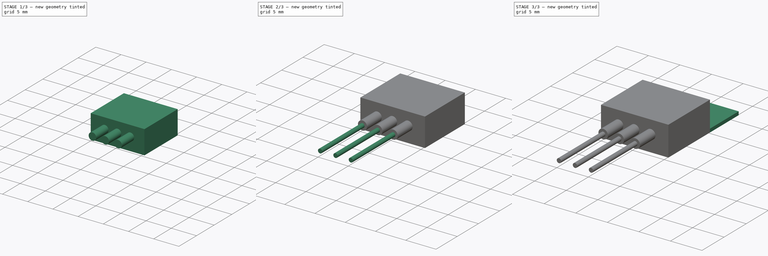
[diagram: build sequence overview — one tinted view per stage of 3, left to right]
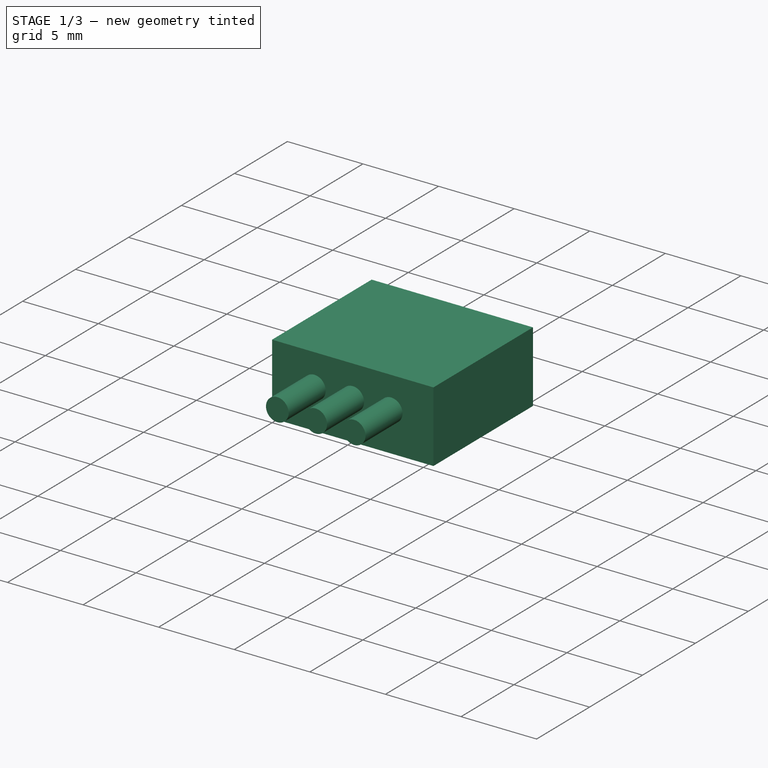
[diagram: stage 1 of 3 — iso view after this stage's code; geometry added in this stage tinted green]
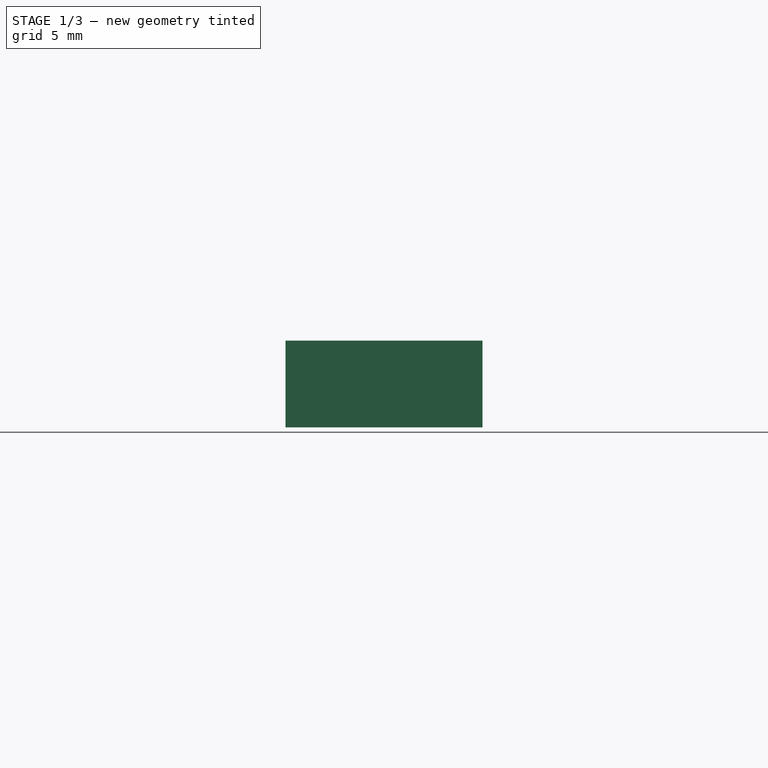
[diagram: stage 1 of 3 — front view after this stage's code; geometry added in this stage tinted green]
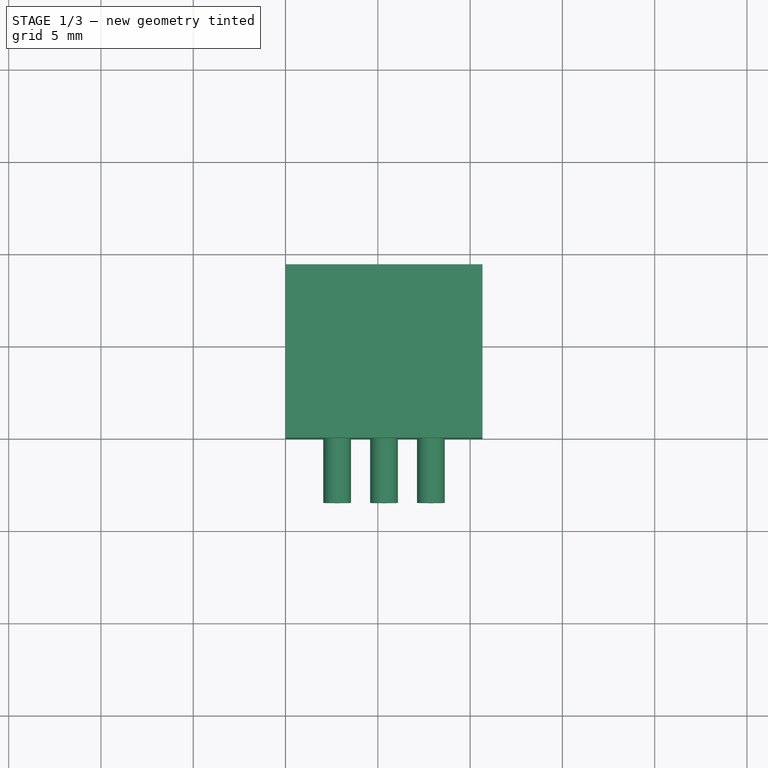
[diagram: stage 1 of 3 — top view after this stage's code; geometry added in this stage tinted green]
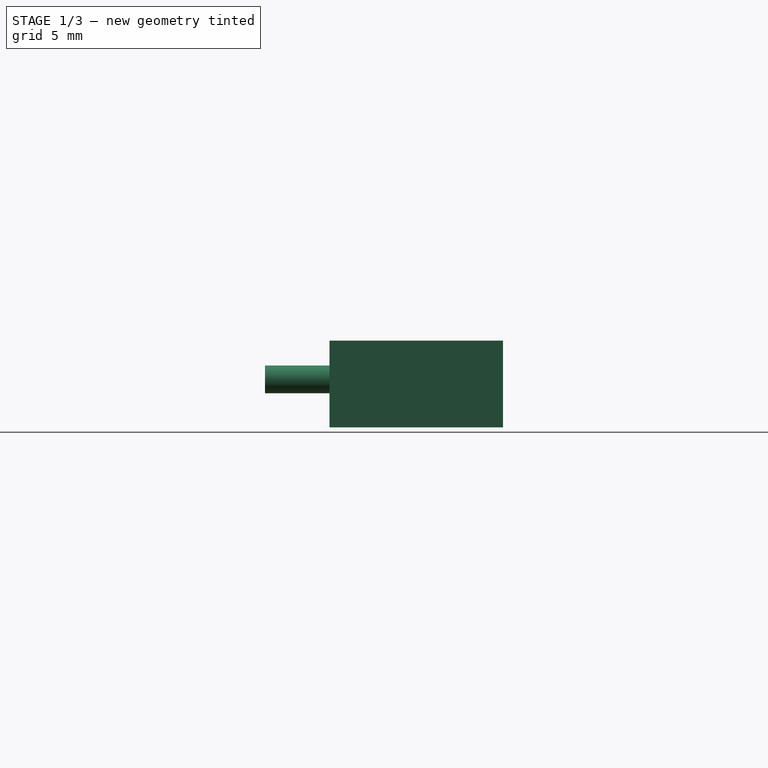
[diagram: stage 1 of 3 — right view after this stage's code; geometry added in this stage tinted green]
FCSTD DOCUMENT  (FreeCAD 0.15R4671 (Git))
Label: LM7805c
License: All rights reserved
LicenseURL: http://en.wikipedia.org/wiki/All_rights_reserved
objects: Sketcher::SketchObject×5, PartDesign::Pad×4, PartDesign::Pocket×1
note: 15 computed .brp shape members not serialized (recipe doc carries the construction recipe); baked Part::Feature solids carry a one-line shape summary decoded from their .brp

FEATURE [Sketcher::SketchObject] Sketch
  sketch-geometry (4):
    g0: LineSegment StartX=0 StartY=0 StartZ=0 EndX=10.67 EndY=0 EndZ=0
    g1: LineSegment StartX=10.67 StartY=0 StartZ=0 EndX=10.67 EndY=9.4 EndZ=0
    g2: LineSegment StartX=10.67 StartY=9.4 StartZ=0 EndX=0 EndY=9.4 EndZ=0
    g3: LineSegment StartX=0 StartY=9.4 StartZ=0 EndX=0 EndY=0 EndZ=0
  constraints (11):
    c: Coincident(g0,g1)
    c: Coincident(g1,g2)
    c: Coincident(g2,g3)
    c: Coincident(g3,g0)
    c: Horizontal(g0)
    c: Horizontal(g2)
    c: Vertical(g1)
    c: Vertical(g3)
    c: Coincident(g0,g-1)
    c: DistanceY(g-1,g2) = 9.4
    c: DistanceX(g-1,g0) = 10.67
FEATURE [PartDesign::Pad] Pad
  Length = 4.7
  Length2 = 100
  Sketch = -> Sketch
  Type = 0
FEATURE [Sketcher::SketchObject] Sketch001
  ExternalGeometry = -> [Pad]
  Placement = pos=(0,0,0) rot=(1,0,0;1.5708rad)
  Support = -> Pad [Face1]
  sketch-geometry (7):
    g0: Circle CenterX=2.795 CenterY=2.6 CenterZ=0 NormalX=0 NormalY=0 NormalZ=1 Radius=0.75
    g1: Circle CenterX=5.335 CenterY=2.6 CenterZ=0 NormalX=0 NormalY=0 NormalZ=1 Radius=0.75
    g2: Circle CenterX=7.875 CenterY=2.6 CenterZ=0 NormalX=0 NormalY=0 NormalZ=1 Radius=0.75
    g3: LineSegment [constr] StartX=2.795 StartY=2.6 StartZ=0 EndX=5.335 EndY=2.6 EndZ=0
    g4: LineSegment [constr] StartX=5.335 StartY=2.6 StartZ=0 EndX=7.875 EndY=2.6 EndZ=0
    g5: LineSegment [constr] StartX=2.795 StartY=2.6 StartZ=0 EndX=0 EndY=2.6 EndZ=0
    g6: LineSegment [constr] StartX=7.875 StartY=2.6 StartZ=0 EndX=10.67 EndY=2.6 EndZ=0
  constraints (19):
    c: Equal(g1,g0)
    c: Equal(g0,g2)
    c: DistanceX(g0,g1) = 2.54
    c: Coincident(g3,g0)
    c: Coincident(g3,g1)
    c: Coincident(g4,g1)
    c: Coincident(g4,g2)
    c: Horizontal(g3)
    c: Horizontal(g4)
    c: Equal(g3,g4)
    c: Coincident(g5,g0)
    c: PointOnObject(g5,g-4)
    c: Horizontal(g5)
    c: Coincident(g6,g2)
    c: PointOnObject(g6,g-3)
    c: Horizontal(g6)
    c: Equal(g5,g6)
    c: DistanceY(g6,g-3) = -2.6
    c: Radius(g0) = 0.75
FEATURE [PartDesign::Pad] Pad001
  Length = 3.5
  Length2 = 100
  Sketch = -> Sketch001
  Type = 0
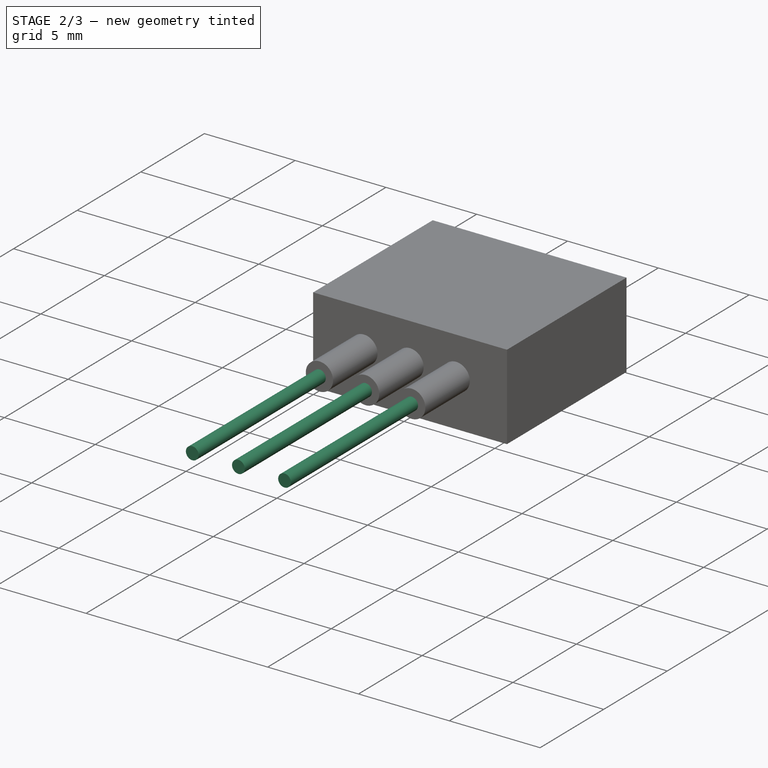
[diagram: stage 2 of 3 — iso view after this stage's code; geometry added in this stage tinted green]
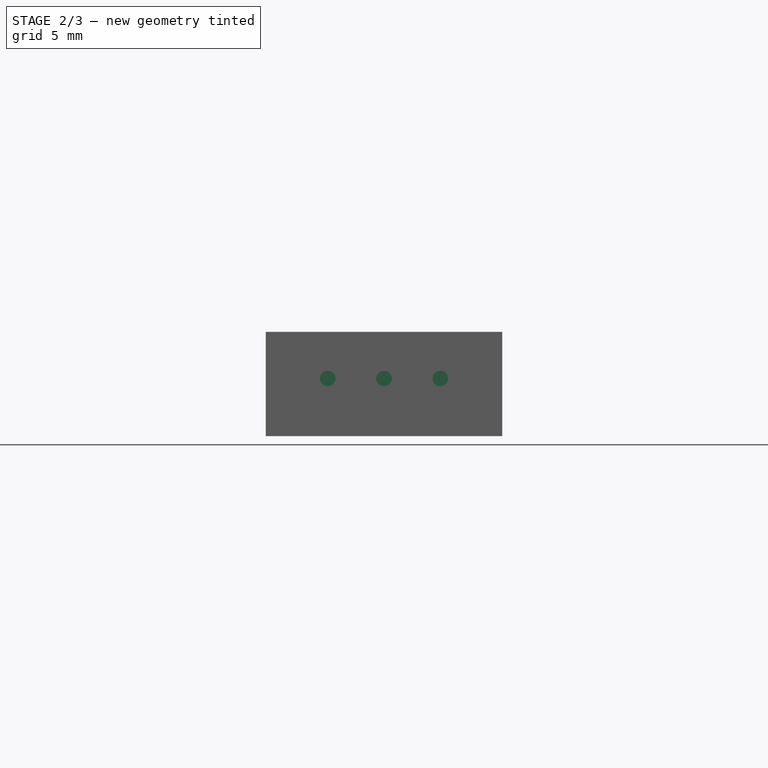
[diagram: stage 2 of 3 — front view after this stage's code; geometry added in this stage tinted green]
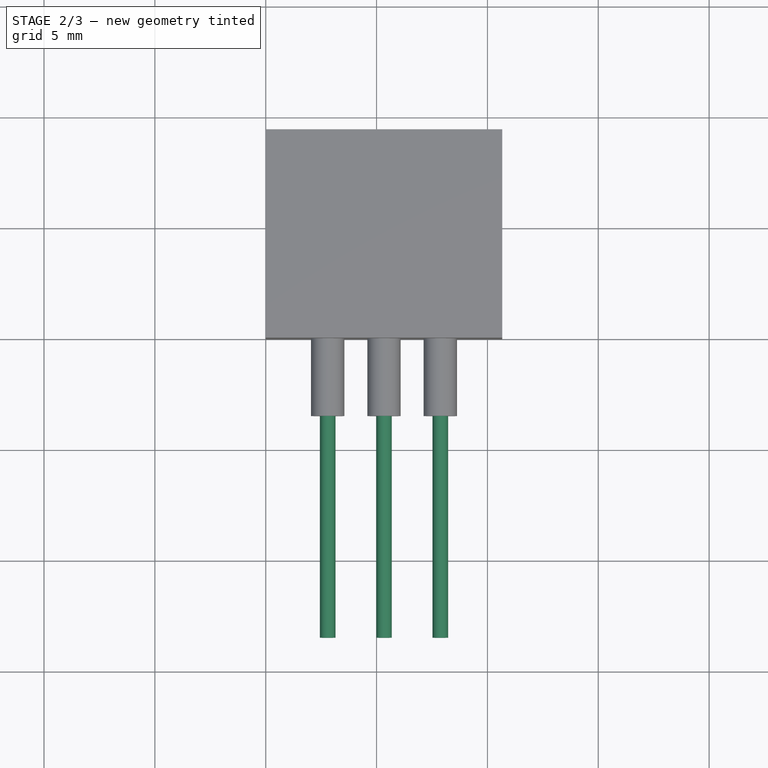
[diagram: stage 2 of 3 — top view after this stage's code; geometry added in this stage tinted green]
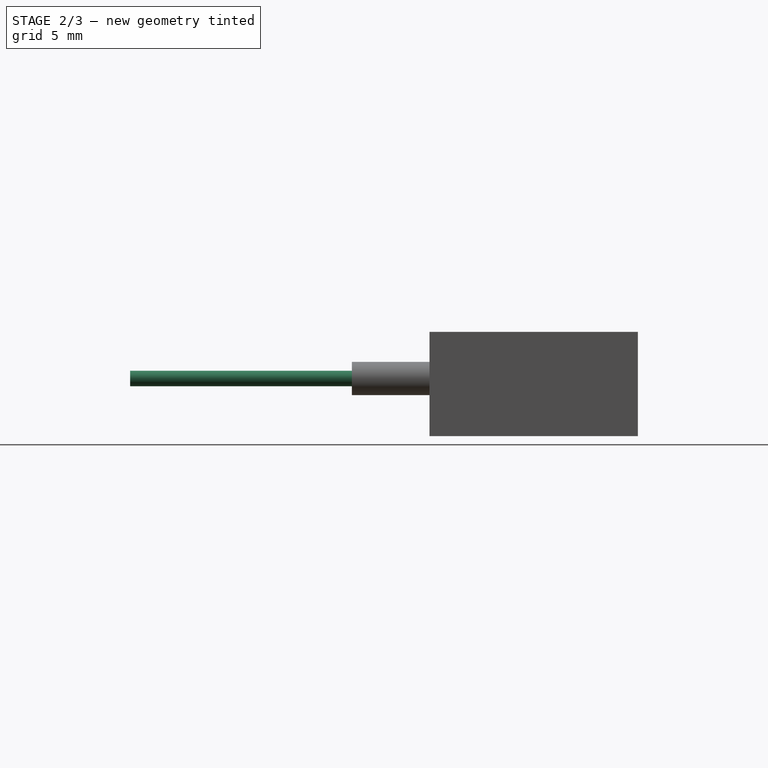
[diagram: stage 2 of 3 — right view after this stage's code; geometry added in this stage tinted green]
FEATURE [Sketcher::SketchObject] Sketch002
  ExternalGeometry = -> [Pad001]
  Placement = pos=(0,-3.5,0) rot=(1,0,0;1.5708rad)
  Support = -> Pad001 [Face11]
  sketch-geometry (3):
    g0: Circle CenterX=2.795 CenterY=2.6 CenterZ=0 NormalX=0 NormalY=0 NormalZ=1 Radius=0.35
    g1: Circle CenterX=5.335 CenterY=2.6 CenterZ=0 NormalX=0 NormalY=0 NormalZ=1 Radius=0.35
    g2: Circle CenterX=7.875 CenterY=2.6 CenterZ=0 NormalX=0 NormalY=0 NormalZ=1 Radius=0.35
  constraints (6):
    c: Coincident(g0,g-3)
    c: Coincident(g1,g-4)
    c: Coincident(g2,g-5)
    c: Equal(g0,g1)
    c: Equal(g1,g2)
    c: Radius(g0) = 0.35
FEATURE [PartDesign::Pad] Pad002
  Length = 10
  Length2 = 100
  Sketch = -> Sketch002
  Type = 0
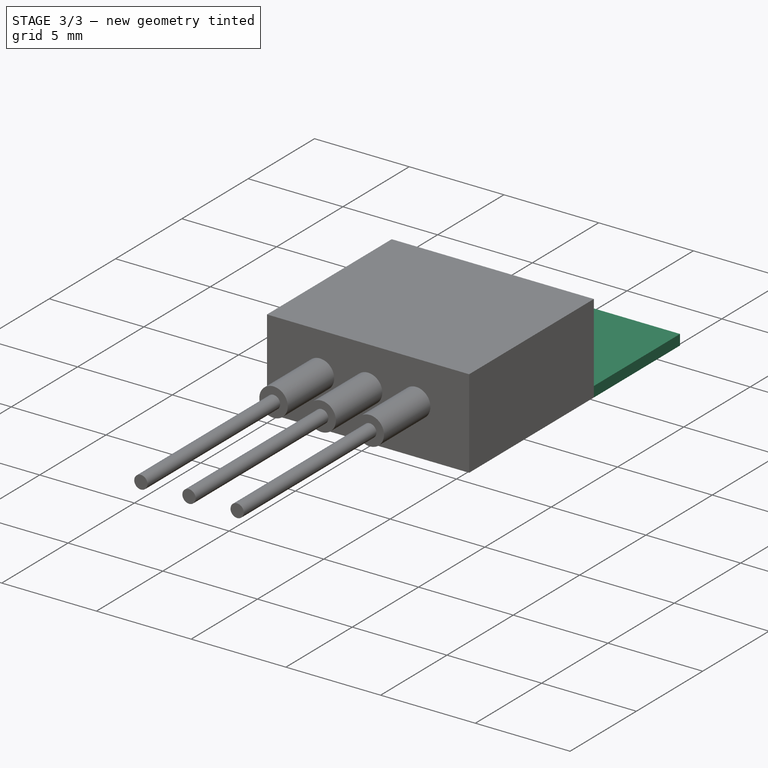
[diagram: stage 3 of 3 — iso view after this stage's code; geometry added in this stage tinted green]
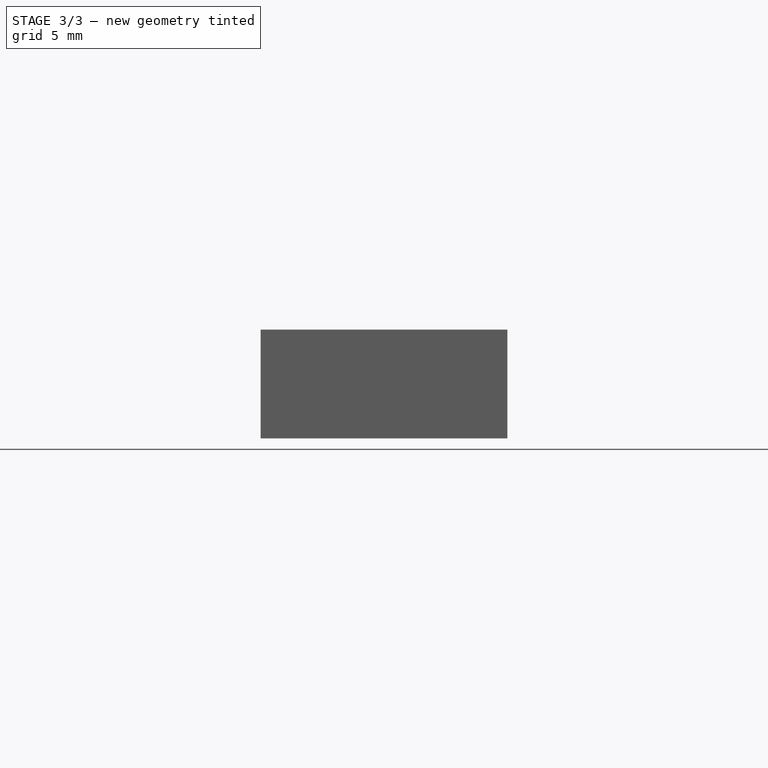
[diagram: stage 3 of 3 — front view after this stage's code; geometry added in this stage tinted green]
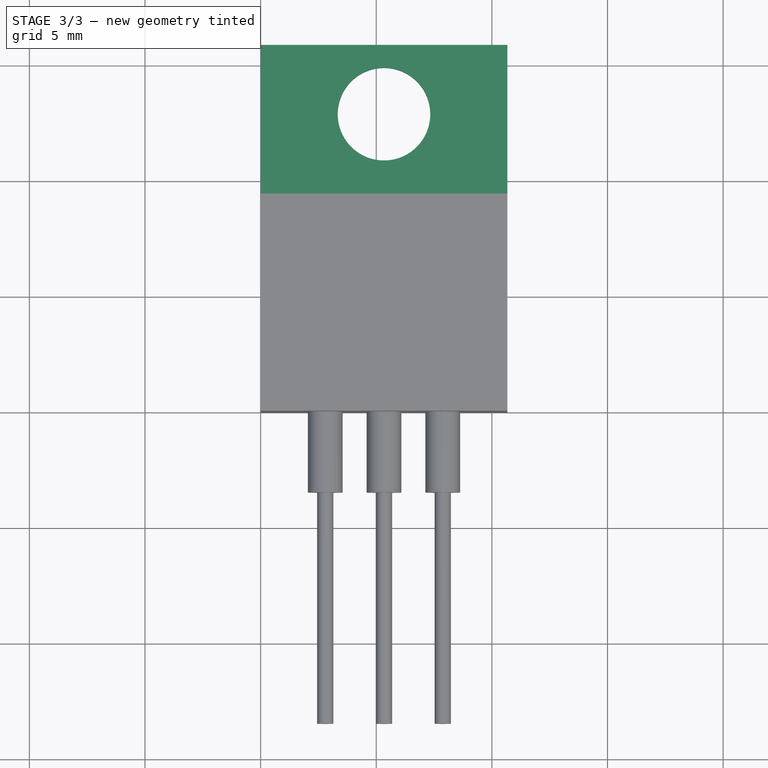
[diagram: stage 3 of 3 — top view after this stage's code; geometry added in this stage tinted green]
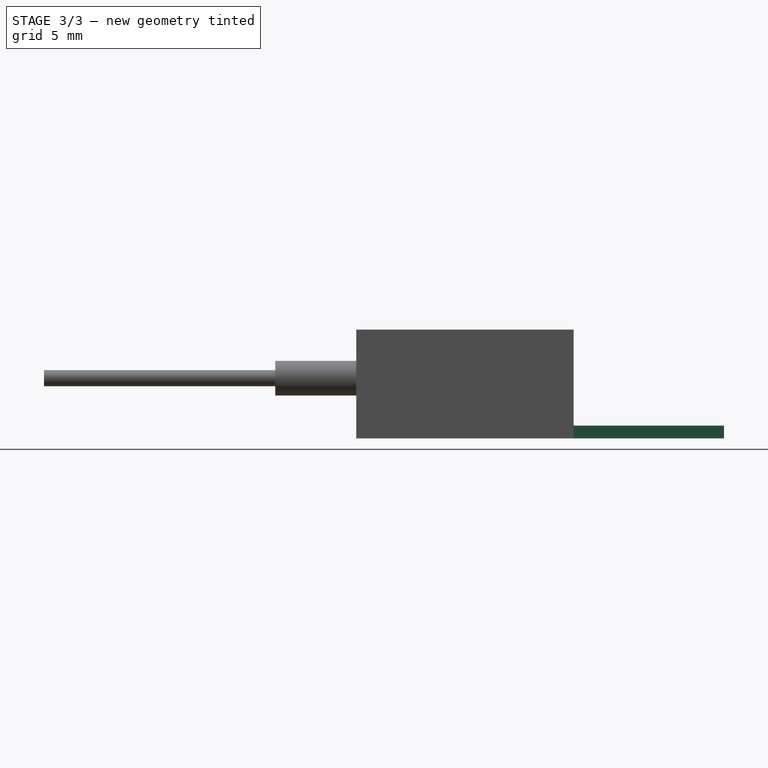
[diagram: stage 3 of 3 — right view after this stage's code; geometry added in this stage tinted green]
FEATURE [Sketcher::SketchObject] Sketch003
  ExternalGeometry = -> [Pad002]
  Placement = pos=(0,9.4,0) rot=(0,0.707107,0.707107;3.14159rad)
  Support = -> Pad002 [Face2]
  sketch-geometry (4):
    g0: LineSegment StartX=-10.67 StartY=0 StartZ=0 EndX=0 EndY=0 EndZ=0
    g1: LineSegment StartX=0 StartY=0 StartZ=0 EndX=0 EndY=0.55 EndZ=0
    g2: LineSegment StartX=0 StartY=0.55 StartZ=0 EndX=-10.67 EndY=0.55 EndZ=0
    g3: LineSegment StartX=-10.67 StartY=0.55 StartZ=0 EndX=-10.67 EndY=0 EndZ=0
  constraints (11):
    c: Coincident(g0,g1)
    c: Coincident(g1,g2)
    c: Coincident(g2,g3)
    c: Coincident(g3,g0)
    c: Horizontal(g0)
    c: Horizontal(g2)
    c: Vertical(g1)
    c: Vertical(g3)
    c: Coincident(g0,g-3)
    c: Coincident(g0,g-1)
    c: DistanceY(g2,g0) = -0.55
FEATURE [PartDesign::Pad] Pad003
  Length = 6.5
  Length2 = 100
  Sketch = -> Sketch003
  Type = 0
FEATURE [Sketcher::SketchObject] Sketch004
  ExternalGeometry = -> [Pad003]
  Placement = pos=(0,0,0.55) rot=(0,0,1;0rad)
  Support = -> Pad003 [Face17]
  sketch-geometry (3):
    g0: Circle CenterX=5.335 CenterY=12.9 CenterZ=0 NormalX=0 NormalY=0 NormalZ=1 Radius=2
    g1: LineSegment [constr] StartX=5.335 StartY=12.9 StartZ=0 EndX=0 EndY=12.9 EndZ=0
    g2: LineSegment [constr] StartX=5.335 StartY=12.9 StartZ=0 EndX=10.67 EndY=12.9 EndZ=0
  constraints (9):
    c: Coincident(g1,g0)
    c: PointOnObject(g1,g-4)
    c: Coincident(g2,g0)
    c: PointOnObject(g2,g-3)
    c: Horizontal(g2)
    c: Horizontal(g1)
    c: Equal(g1,g2)
    c: Radius(g0) = 2
    c: DistanceY(g0,g-6) = 3
FEATURE [PartDesign::Pocket] Pocket
  Length = 5
  Sketch = -> Sketch004
  Type = 0
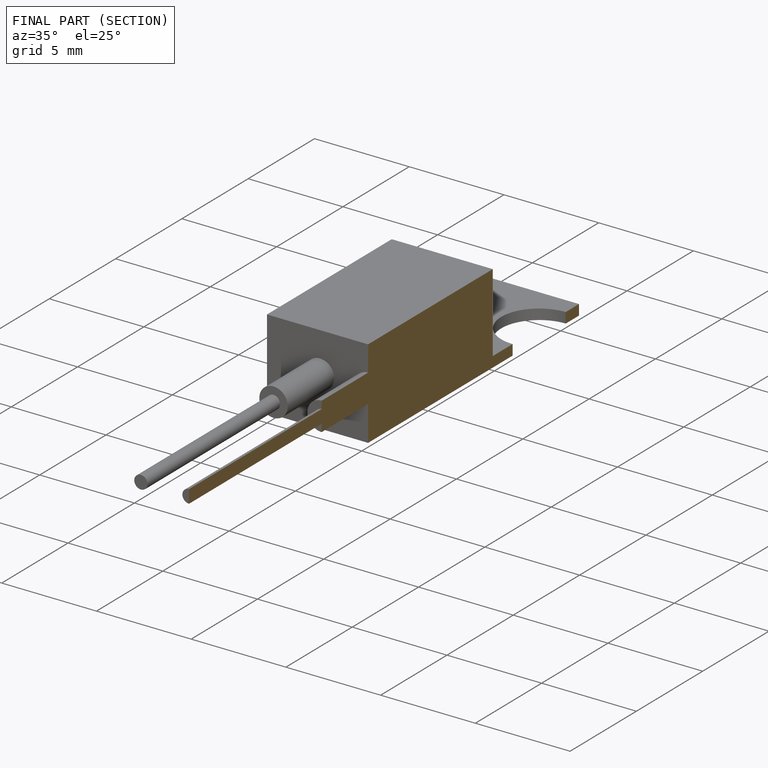
[diagram: finished part — half-section view (interior)]
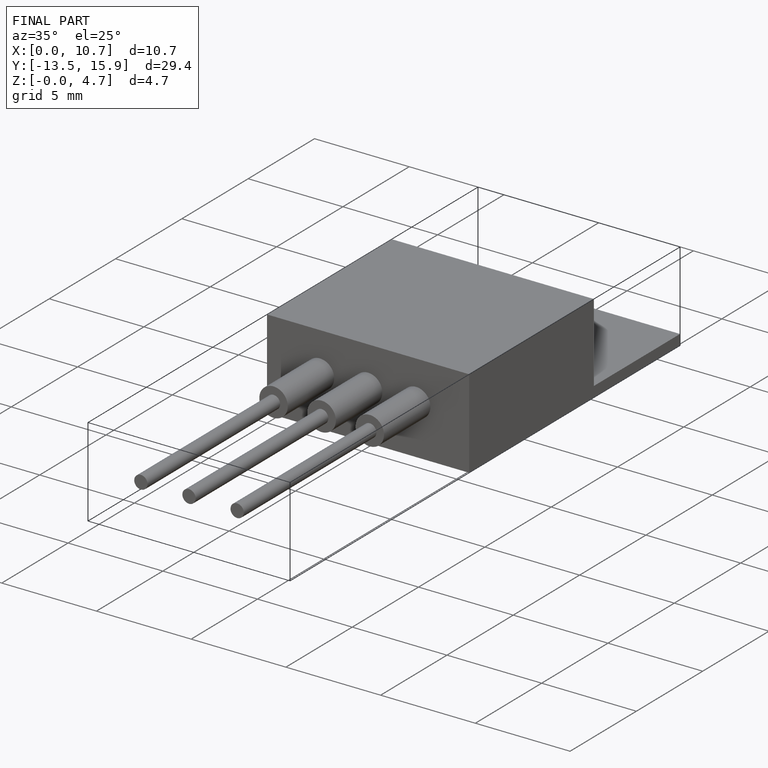
[diagram: finished part — iso view with bounding-box wireframe]
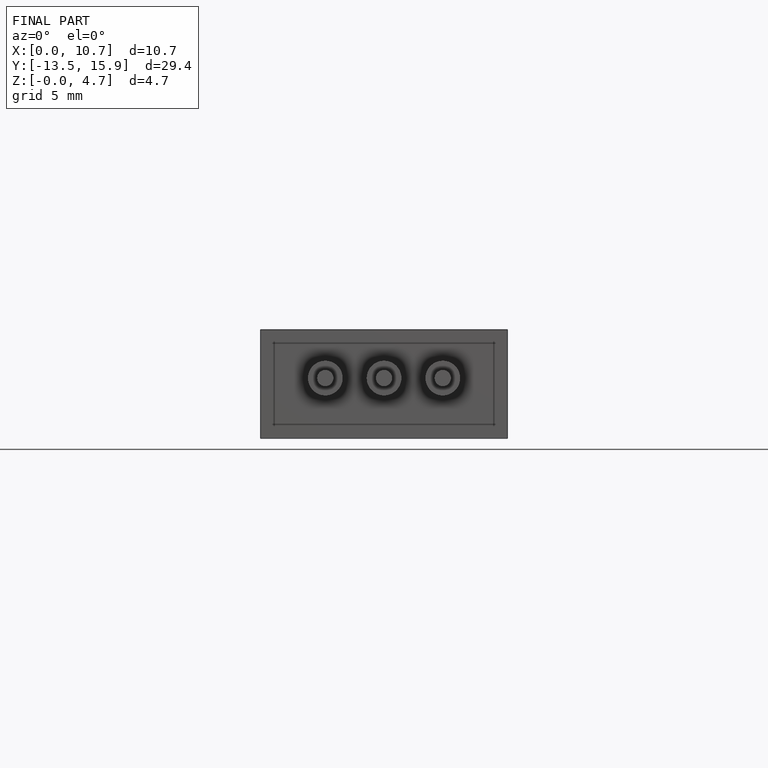
[diagram: finished part — front view with bounding-box wireframe]
